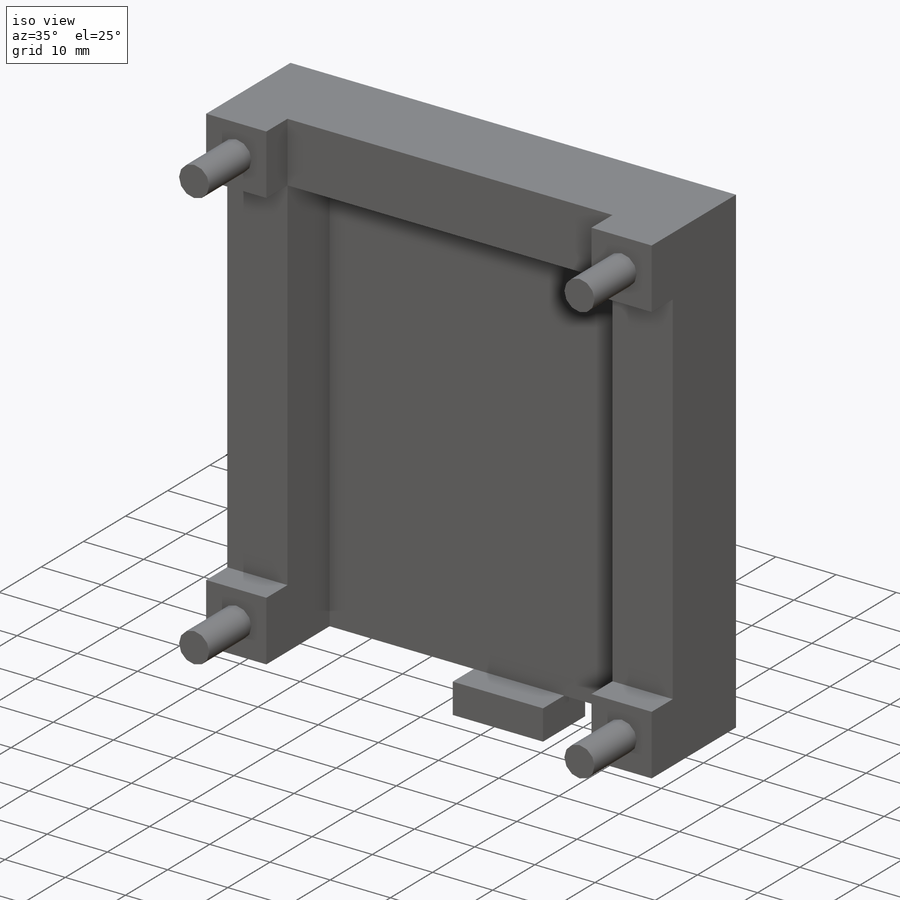
[diagram: iso view]
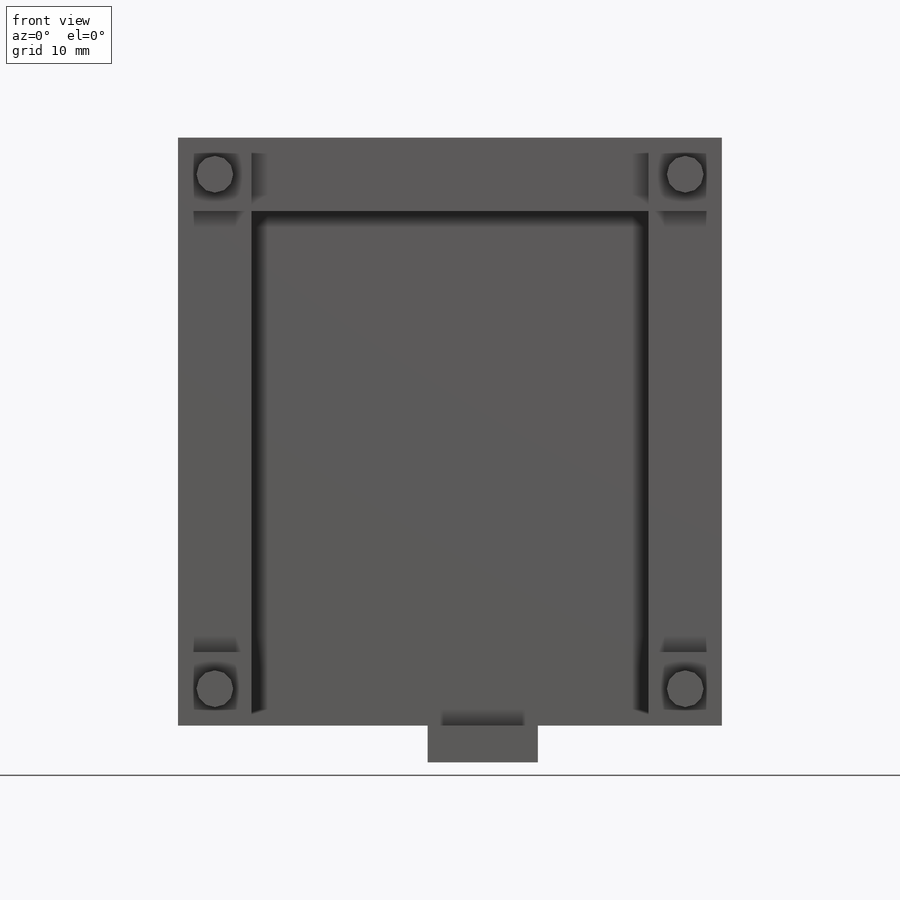
[diagram: front view]
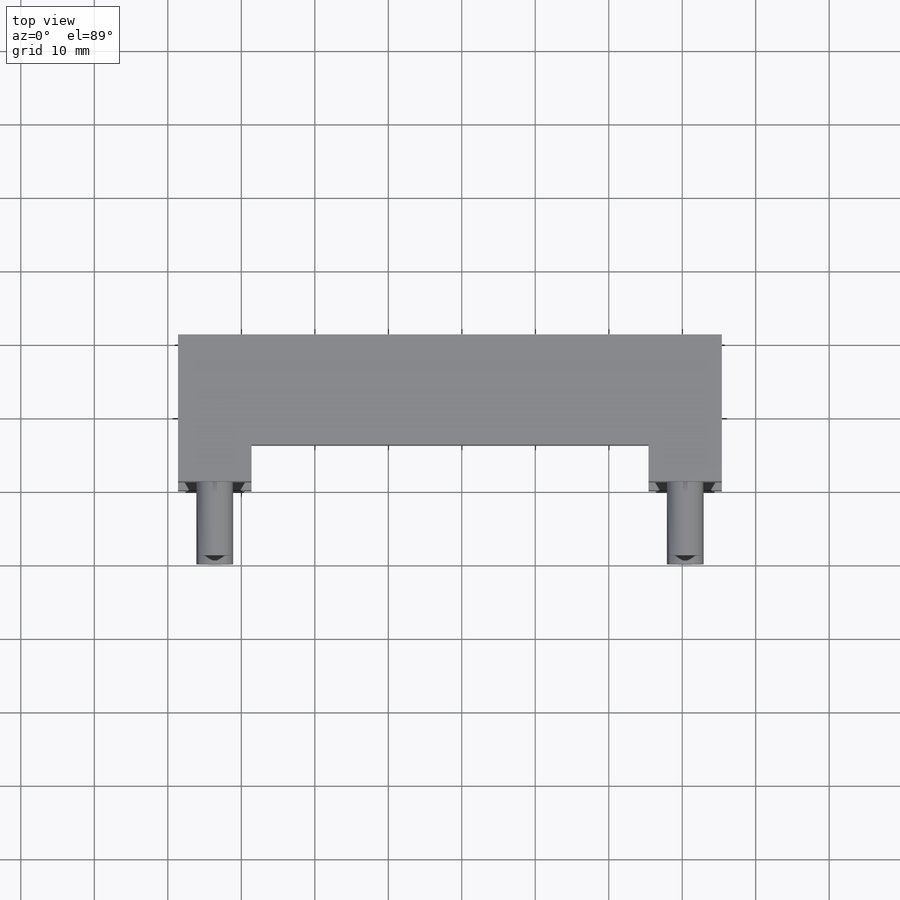
[diagram: top view]
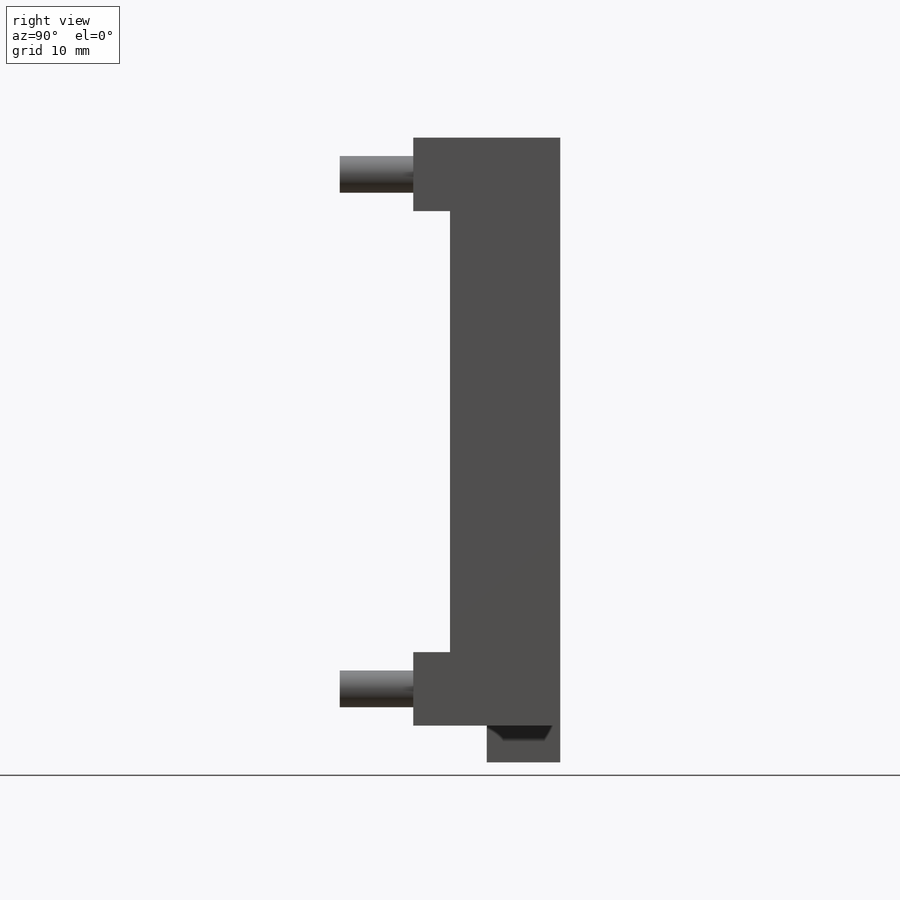
[diagram: right view]
SOLIDWORKS PART (.sldprt)
format: sldprt  version: not decoded by parser v0  size: 351,744 bytes
history: native  units: mm
features: sketch x8, extrude x6, plane x3, material x1, cut_extrude x1 (+9 scaffold rows collapsed)
feature tree (28):
  scaffold x9  (default folders/planes/origin — collapsed)
  material  "Material <sin especificar>"
  plane  "Alzado"
  plane  "Planta"
  plane  "Vista lateral"
  sketch  "Croquis1"  dims[D1=54.0mm D2=70.0mm]
  extrude  "Saliente-Extruir1"  Depth=5mm
  sketch  "Croquis2"  dims[D1=9.5mm]
  sketch  "Croquis4"  dims[D1=10.0mm]
  extrude  "Saliente-Extruir5"  Depth=15mm
  sketch  "Croquis5"  dims[D1=~0.238225mm]
  extrude  "Saliente-Extruir6"  Depth=20mm
  sketch  "Croquis6"  dims[D1=5.0mm D2=5.0mm D3=15.0mm D4=15.0mm]
  extrude  "Saliente-Extruir7"  Depth=10mm
  sketch  "Croquis8"  dims[D1=~0.84739mm]
  extrude  "Saliente-Extruir9"  Depth=15mm
  sketch  "Croquis9"  dims[D1=~7.68953mm D2=~6.284711mm]
  extrude  "Saliente-Extruir10"  Depth=10mm
  sketch  "Croquis11"  dims[c1.D1=~1626.640089mm c1.D2=5.1mm c1.D3=5.1mm c2.D1=~40.051577mm c2.D2=~14.414621mm c2.D3=70.0mm]
  cut_extrude  "Cortar-Extruir1"  Depth=10mm
decode coverage: 15 of 15 modeling features carry decoded parameters
note: ~ marks probable driven/reference dimensions
note: suppression state not decoded; provenance and decode notes live in map.json
